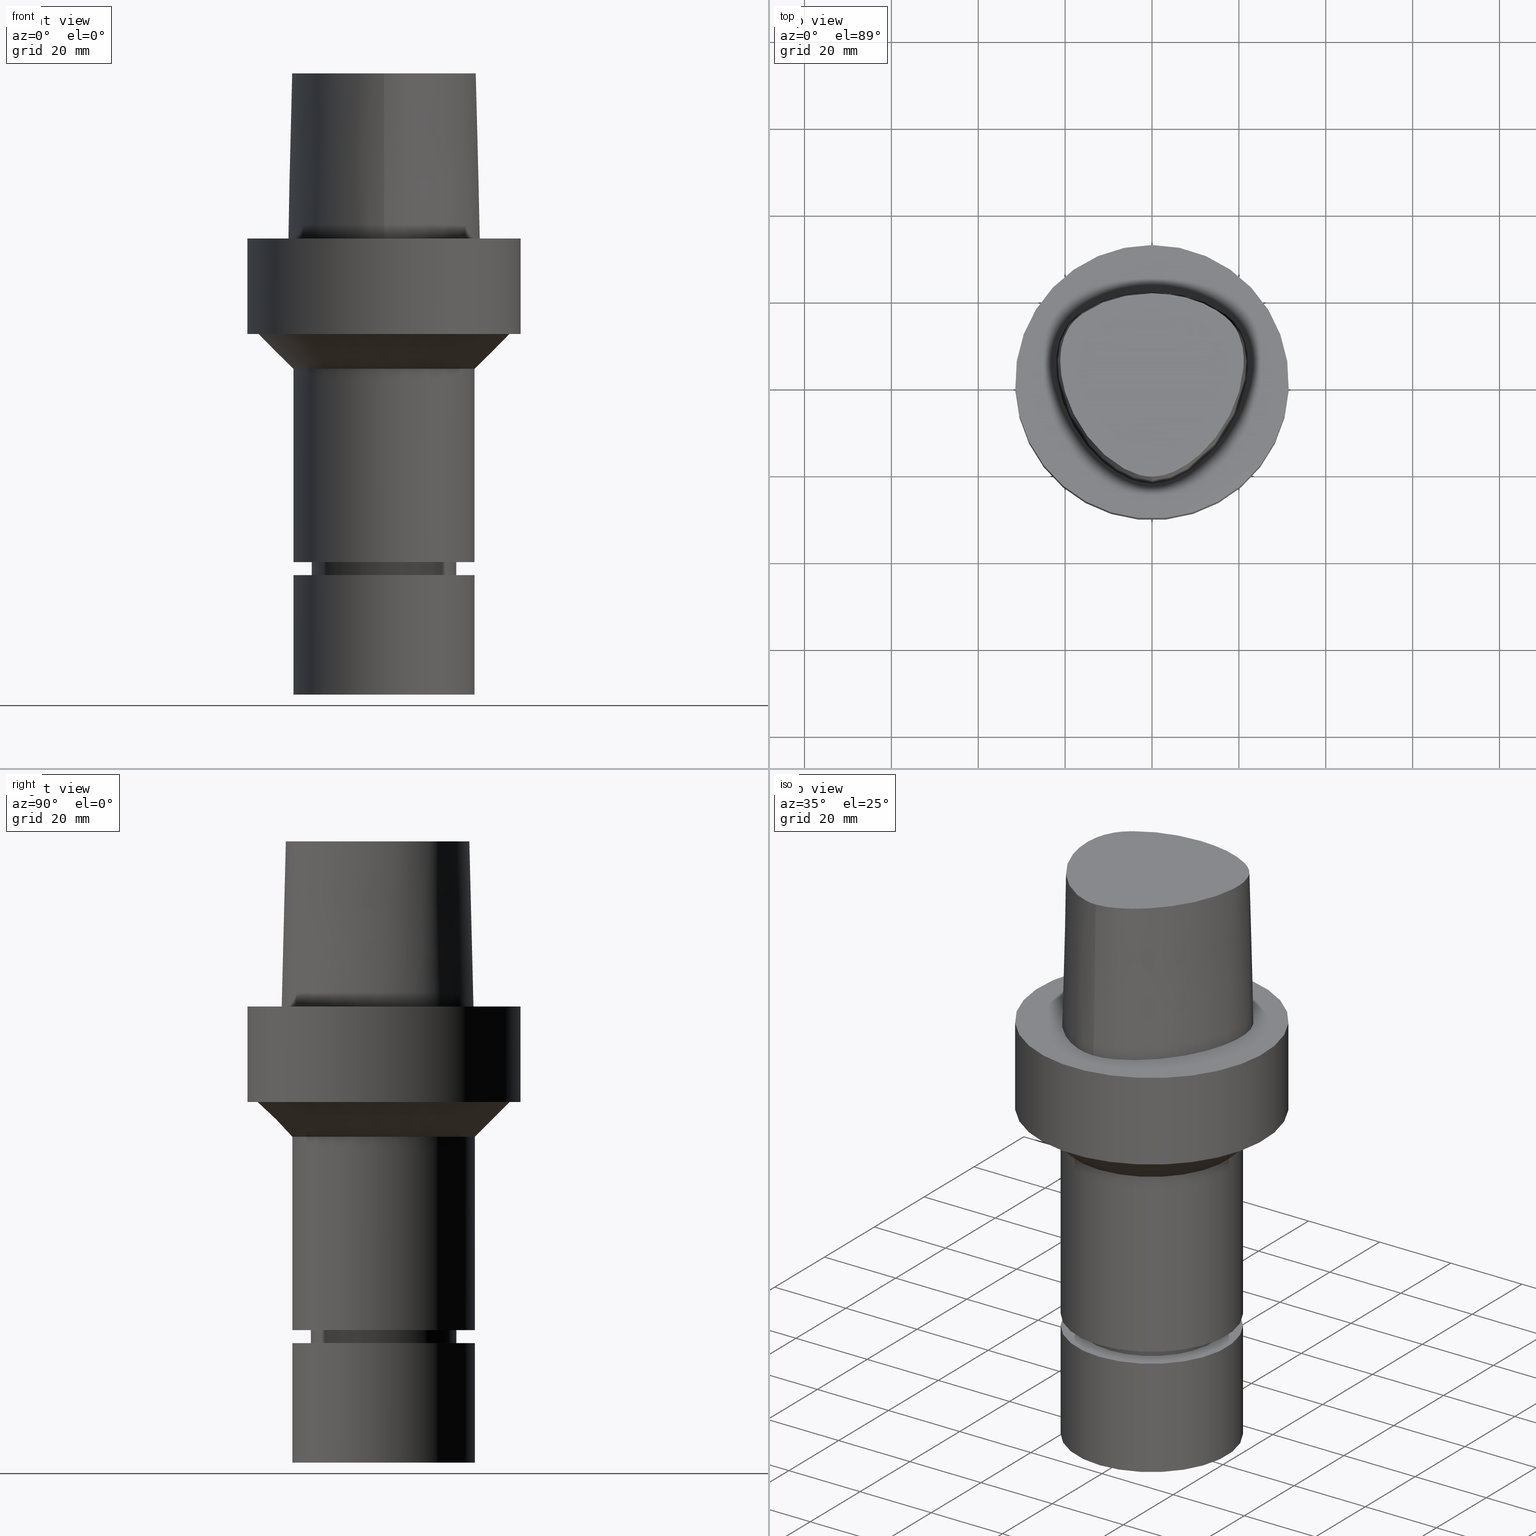
[diagram: canonical four-view strip — front | top / right | iso, engineering-drawing reading convention]
A machine part, canonical four-view strip (front | top / right | iso — engineering-drawing reading convention). The complete STEP part file that produces these views, byte-faithful:
ISO-10303-21;
HEADER;
FILE_DESCRIPTION((''),'1');
FILE_NAME('V:/90_\X2\53D65F9730C730FC30BF\X0\/00_\X2\6DE18DEF30C730FC30BF\X0\/ALL/CAPTO-BKUS\X2\52A05DE556F3\X0\_201801/C6-MEGAER/C6-MEGAER25-105NL.stp','2018-02-01T08:32:15',(''),(''),'Spatial Interop R21 SP3','Kubotek KeyCreator 2011 V10.0.2 (22737)',' ');
FILE_SCHEMA(('automotive_design'));
ENDSEC;
DATA;
#1=MECHANICAL_DESIGN_GEOMETRIC_PRESENTATION_REPRESENTATION(' ',(#14,#15,#16,#17,#18,#19,#20,#21,#22,#23,#24,#25,#26,#27,#28,#29,#30,#31,#32,#33,#34,#35,#36,#37,#38,#39,#40,#41,#42,#43,#44,#45,#46,#47,#48,#49,#50,#51,#52,#53),#10);
#2=PRODUCT_DEFINITION_CONTEXT('',#54,'design');
#3=APPLICATION_PROTOCOL_DEFINITION('INTERNATIONAL STANDARD','automotive_design',1994,#54);
#4=PRODUCT_CATEGORY_RELATIONSHIP('NONE','NONE',#55,#56);
#5=SHAPE_DEFINITION_REPRESENTATION(#57,#58);
#6=PRODUCT_DEFINITION_CONTEXT('',#59,'design');
#7=APPLICATION_PROTOCOL_DEFINITION('INTERNATIONAL STANDARD','automotive_design',1994,#59);
#8=PRODUCT_CATEGORY_RELATIONSHIP('NONE','NONE',#60,#61);
#9=SHAPE_DEFINITION_REPRESENTATION(#62,#63);
#10= (GEOMETRIC_REPRESENTATION_CONTEXT(3)GLOBAL_UNCERTAINTY_ASSIGNED_CONTEXT((#66))GLOBAL_UNIT_ASSIGNED_CONTEXT((#68,#69,#70))REPRESENTATION_CONTEXT('NONE','WORKSPACE'));
#14=STYLED_ITEM('',(#72),#73);
#15=STYLED_ITEM('',(#74),#75);
#16=STYLED_ITEM('',(#76,#77),#78);
#17=STYLED_ITEM('',(#79,#80),#81);
#18=STYLED_ITEM('',(#82),#83);
#19=STYLED_ITEM('',(#84,#85),#86);
#20=STYLED_ITEM('',(#87),#88);
#21=STYLED_ITEM('',(#89),#90);
#22=STYLED_ITEM('',(#91,#92),#93);
#23=STYLED_ITEM('',(#94),#95);
#24=STYLED_ITEM('',(#96,#97),#98);
#25=STYLED_ITEM('',(#99,#100),#101);
#26=STYLED_ITEM('',(#102),#103);
#27=STYLED_ITEM('',(#104,#105),#106);
#28=STYLED_ITEM('',(#107),#108);
#29=STYLED_ITEM('',(#109),#110);
#30=STYLED_ITEM('',(#111,#112),#113);
#31=STYLED_ITEM('',(#114),#115);
#32=STYLED_ITEM('',(#116,#117),#118);
#33=STYLED_ITEM('',(#119),#120);
#34=STYLED_ITEM('',(#121,#122),#123);
#35=STYLED_ITEM('',(#124,#125),#126);
#36=STYLED_ITEM('',(#127),#128);
#37=STYLED_ITEM('',(#129,#130),#131);
#38=STYLED_ITEM('',(#132,#133),#134);
#39=STYLED_ITEM('',(#135),#136);
#40=STYLED_ITEM('',(#137),#138);
#41=STYLED_ITEM('',(#139,#140),#141);
#42=STYLED_ITEM('',(#142,#143),#144);
#43=STYLED_ITEM('',(#145),#146);
#44=STYLED_ITEM('',(#147),#148);
#45=STYLED_ITEM('',(#149,#150),#151);
#46=STYLED_ITEM('',(#152),#153);
#47=STYLED_ITEM('',(#154),#155);
#48=STYLED_ITEM('',(#156,#157),#158);
#49=STYLED_ITEM('',(#159,#160),#161);
#50=STYLED_ITEM('',(#162),#163);
#51=STYLED_ITEM('',(#164,#165),#166);
#52=STYLED_ITEM('',(#167),#168);
#53=STYLED_ITEM('',(#169,#170),#171);
#54=APPLICATION_CONTEXT(' ');
#55=PRODUCT_CATEGORY('part','NONE');
#56=PRODUCT_RELATED_PRODUCT_CATEGORY('detail',' ',(#172));
#57=PRODUCT_DEFINITION_SHAPE('NONE','NONE',#173);
#58=ADVANCED_BREP_SHAPE_REPRESENTATION('Unnamed[1]',(#106,#174),#10);
#59=APPLICATION_CONTEXT(' ');
#60=PRODUCT_CATEGORY('part','NONE');
#61=PRODUCT_RELATED_PRODUCT_CATEGORY('detail',' ',(#175));
#62=PRODUCT_DEFINITION_SHAPE('NONE','NONE',#176);
#63=ADVANCED_BREP_SHAPE_REPRESENTATION('Unnamed[1]',(#141,#177),#10);
#66=UNCERTAINTY_MEASURE_WITH_UNIT(LENGTH_MEASURE(1.0E-006),#68,'','');
#68= (CONVERSION_BASED_UNIT('MILLIMETRE',#180)LENGTH_UNIT()NAMED_UNIT(#183));
#69= (NAMED_UNIT(#185)PLANE_ANGLE_UNIT()SI_UNIT($,.RADIAN.));
#70= (NAMED_UNIT(#185)SOLID_ANGLE_UNIT()SI_UNIT($,.STERADIAN.));
#72=PRESENTATION_STYLE_ASSIGNMENT((#191));
#73=EDGE_CURVE('Unnamed[1]',#192,#193,#194,.T.);
#74=PRESENTATION_STYLE_ASSIGNMENT((#195));
#75=EDGE_CURVE('Unnamed[1]',#196,#196,#197,.T.);
#76=PRESENTATION_STYLE_ASSIGNMENT((#198));
#77=PRESENTATION_STYLE_ASSIGNMENT((#199));
#78=ADVANCED_FACE('Unnamed[1]',(#200,#201),#202,.T.);
#79=PRESENTATION_STYLE_ASSIGNMENT((#203));
#80=PRESENTATION_STYLE_ASSIGNMENT((#204));
#81=ADVANCED_FACE('Unnamed[1]',(#205,#206),#207,.T.);
#82=PRESENTATION_STYLE_ASSIGNMENT((#208));
#83=EDGE_CURVE('Unnamed[1]',#209,#209,#210,.T.);
#84=PRESENTATION_STYLE_ASSIGNMENT((#211));
#85=PRESENTATION_STYLE_ASSIGNMENT((#212));
#86=ADVANCED_FACE('Unnamed[1]',(#213,#214),#215,.T.);
#87=PRESENTATION_STYLE_ASSIGNMENT((#216));
#88=EDGE_CURVE('Unnamed[1]',#217,#217,#218,.T.);
#89=PRESENTATION_STYLE_ASSIGNMENT((#219));
#90=EDGE_CURVE('Unnamed[1]',#220,#221,#222,.T.);
#91=PRESENTATION_STYLE_ASSIGNMENT((#223));
#92=PRESENTATION_STYLE_ASSIGNMENT((#224));
#93=ADVANCED_FACE('Unnamed[1]',(#225,#226),#227,.T.);
#94=PRESENTATION_STYLE_ASSIGNMENT((#228));
#95=EDGE_CURVE('Unnamed[1]',#221,#193,#229,.T.);
#96=PRESENTATION_STYLE_ASSIGNMENT((#230));
#97=PRESENTATION_STYLE_ASSIGNMENT((#231));
#98=ADVANCED_FACE('Unnamed[1]',(#232),#233,.T.);
#99=PRESENTATION_STYLE_ASSIGNMENT((#234));
#100=PRESENTATION_STYLE_ASSIGNMENT((#235));
#101=ADVANCED_FACE('Unnamed[1]',(#236),#237,.T.);
#102=PRESENTATION_STYLE_ASSIGNMENT((#238));
#103=EDGE_CURVE('Unnamed[1]',#239,#239,#240,.T.);
#104=PRESENTATION_STYLE_ASSIGNMENT((#241));
#105=PRESENTATION_STYLE_ASSIGNMENT((#242));
#106=MANIFOLD_SOLID_BREP('Unnamed[1]',#243);
#107=PRESENTATION_STYLE_ASSIGNMENT((#244));
#108=EDGE_CURVE('Unnamed[1]',#193,#245,#246,.T.);
#109=PRESENTATION_STYLE_ASSIGNMENT((#247));
#110=EDGE_CURVE('Unnamed[1]',#248,#248,#249,.T.);
#111=PRESENTATION_STYLE_ASSIGNMENT((#250));
#112=PRESENTATION_STYLE_ASSIGNMENT((#251));
#113=ADVANCED_FACE('Unnamed[1]',(#252,#253),#254,.T.);
#114=PRESENTATION_STYLE_ASSIGNMENT((#255));
#115=EDGE_CURVE('Unnamed[1]',#256,#256,#257,.T.);
#116=PRESENTATION_STYLE_ASSIGNMENT((#258));
#117=PRESENTATION_STYLE_ASSIGNMENT((#259));
#118=ADVANCED_FACE('Unnamed[1]',(#260,#261),#262,.T.);
#119=PRESENTATION_STYLE_ASSIGNMENT((#263));
#120=EDGE_CURVE('Unnamed[1]',#264,#264,#265,.T.);
#121=PRESENTATION_STYLE_ASSIGNMENT((#266));
#122=PRESENTATION_STYLE_ASSIGNMENT((#267));
#123=ADVANCED_FACE('Unnamed[1]',(#268),#269,.T.);
#124=PRESENTATION_STYLE_ASSIGNMENT((#270));
#125=PRESENTATION_STYLE_ASSIGNMENT((#271));
#126=ADVANCED_FACE('Unnamed[1]',(#272,#273),#274,.T.);
#127=PRESENTATION_STYLE_ASSIGNMENT((#275));
#128=EDGE_CURVE('Unnamed[1]',#276,#276,#277,.T.);
#129=PRESENTATION_STYLE_ASSIGNMENT((#278));
#130=PRESENTATION_STYLE_ASSIGNMENT((#279));
#131=ADVANCED_FACE('Unnamed[1]',(#280),#281,.T.);
#132=PRESENTATION_STYLE_ASSIGNMENT((#282));
#133=PRESENTATION_STYLE_ASSIGNMENT((#283));
#134=ADVANCED_FACE('Unnamed[1]',(#284,#285),#286,.T.);
#135=PRESENTATION_STYLE_ASSIGNMENT((#287));
#136=EDGE_CURVE('Unnamed[1]',#288,#288,#289,.T.);
#137=PRESENTATION_STYLE_ASSIGNMENT((#290));
#138=EDGE_CURVE('Unnamed[1]',#291,#291,#292,.T.);
#139=PRESENTATION_STYLE_ASSIGNMENT((#293));
#140=PRESENTATION_STYLE_ASSIGNMENT((#294));
#141=MANIFOLD_SOLID_BREP('Unnamed[1]',#295);
#142=PRESENTATION_STYLE_ASSIGNMENT((#296));
#143=PRESENTATION_STYLE_ASSIGNMENT((#297));
#144=ADVANCED_FACE('Unnamed[1]',(#298),#299,.T.);
#145=PRESENTATION_STYLE_ASSIGNMENT((#300));
#146=EDGE_CURVE('Unnamed[1]',#220,#245,#301,.T.);
#147=PRESENTATION_STYLE_ASSIGNMENT((#302));
#148=EDGE_CURVE('Unnamed[1]',#303,#303,#304,.T.);
#149=PRESENTATION_STYLE_ASSIGNMENT((#305));
#150=PRESENTATION_STYLE_ASSIGNMENT((#306));
#151=ADVANCED_FACE('Unnamed[1]',(#307,#308),#309,.T.);
#152=PRESENTATION_STYLE_ASSIGNMENT((#310));
#153=EDGE_CURVE('Unnamed[1]',#220,#192,#311,.T.);
#154=PRESENTATION_STYLE_ASSIGNMENT((#312));
#155=EDGE_CURVE('Unnamed[1]',#313,#313,#314,.T.);
#156=PRESENTATION_STYLE_ASSIGNMENT((#315));
#157=PRESENTATION_STYLE_ASSIGNMENT((#316));
#158=ADVANCED_FACE('Unnamed[1]',(#317,#318),#319,.T.);
#159=PRESENTATION_STYLE_ASSIGNMENT((#320));
#160=PRESENTATION_STYLE_ASSIGNMENT((#321));
#161=ADVANCED_FACE('Unnamed[1]',(#322),#323,.T.);
#162=PRESENTATION_STYLE_ASSIGNMENT((#324));
#163=EDGE_CURVE('Unnamed[1]',#192,#220,#325,.T.);
#164=PRESENTATION_STYLE_ASSIGNMENT((#326));
#165=PRESENTATION_STYLE_ASSIGNMENT((#327));
#166=ADVANCED_FACE('Unnamed[1]',(#328),#329,.T.);
#167=PRESENTATION_STYLE_ASSIGNMENT((#330));
#168=EDGE_CURVE('Unnamed[1]',#245,#221,#331,.T.);
#169=PRESENTATION_STYLE_ASSIGNMENT((#332));
#170=PRESENTATION_STYLE_ASSIGNMENT((#333));
#171=ADVANCED_FACE('Unnamed[1]',(#334,#335),#336,.T.);
#172=PRODUCT('Unnamed[1]','Unnamed[1]','PART-Unnamed[1]-DESC',(#337));
#173=PRODUCT_DEFINITION('NONE','NONE',#338,#2);
#174=AXIS2_PLACEMENT_3D('',#339,#340,#341);
#175=PRODUCT('Unnamed[1]','Unnamed[1]','PART-Unnamed[1]-DESC',(#342));
#176=PRODUCT_DEFINITION('NONE','NONE',#343,#6);
#177=AXIS2_PLACEMENT_3D('',#344,#345,#346);
#180=LENGTH_MEASURE_WITH_UNIT(LENGTH_MEASURE(1.0),#347);
#183=DIMENSIONAL_EXPONENTS(1.0,0.0,0.0,0.0,0.0,0.0,0.0);
#185=DIMENSIONAL_EXPONENTS(0.0,0.0,0.0,0.0,0.0,0.0,0.0);
#191=CURVE_STYLE('',#348,POSITIVE_LENGTH_MEASURE(1000.0),#349);
#192=VERTEX_POINT('',#350);
#193=VERTEX_POINT('',#351);
#194=LINE('',#352,#353);
#195=CURVE_STYLE('',#354,POSITIVE_LENGTH_MEASURE(1000.0),#355);
#196=VERTEX_POINT('',#356);
#197=CIRCLE('',#357,21.0);
#198=SURFACE_STYLE_USAGE(.BOTH.,#358);
#199=CURVE_STYLE('',#359,POSITIVE_LENGTH_MEASURE(1000.0),#360);
#200=FACE_BOUND('',#361,.T.);
#201=FACE_OUTER_BOUND('',#362,.T.);
#202=PLANE('',#363);
#203=SURFACE_STYLE_USAGE(.BOTH.,#364);
#204=CURVE_STYLE('',#365,POSITIVE_LENGTH_MEASURE(1000.0),#366);
#205=FACE_BOUND('',#367,.T.);
#206=FACE_BOUND('',#368,.T.);
#207=CONICAL_SURFACE('',#369,15.4500000000003,0.523598775598044);
#208=CURVE_STYLE('',#370,POSITIVE_LENGTH_MEASURE(1000.0),#371);
#209=VERTEX_POINT('',#372);
#210=CIRCLE('',#373,31.5);
#211=SURFACE_STYLE_USAGE(.BOTH.,#374);
#212=CURVE_STYLE('',#375,POSITIVE_LENGTH_MEASURE(1000.0),#376);
#213=FACE_BOUND('',#377,.T.);
#214=FACE_BOUND('',#378,.T.);
#215=CYLINDRICAL_SURFACE('',#379,21.0);
#216=CURVE_STYLE('',#380,POSITIVE_LENGTH_MEASURE(1000.0),#381);
#217=VERTEX_POINT('',#382);
#218=CIRCLE('',#383,16.0);
#219=CURVE_STYLE('',#384,POSITIVE_LENGTH_MEASURE(1000.0),#385);
#220=VERTEX_POINT('',#386);
#221=VERTEX_POINT('',#387);
#222=LINE('',#388,#389);
#223=SURFACE_STYLE_USAGE(.BOTH.,#390);
#224=CURVE_STYLE('',#391,POSITIVE_LENGTH_MEASURE(1000.0),#392);
#225=FACE_BOUND('',#393,.T.);
#226=FACE_BOUND('',#394,.T.);
#227=CYLINDRICAL_SURFACE('',#395,16.7499999999962);
#228=CURVE_STYLE('',#396,POSITIVE_LENGTH_MEASURE(1000.0),#397);
#229=B_SPLINE_CURVE_WITH_KNOTS('',3,(#398,#399,#400,#401,#402,#403,#404,#405,#406,#407,#408,#409,#410,#411,#412,#413,#414),.UNSPECIFIED.,.F.,.F.,(4,1,1,1,1,1,1,1,1,1,1,1,1,1,4),(-13.2302678617486,-12.816821991069,-12.4033761203893,-11.9899302497097,-11.57648437903,-11.1630385083504,-10.9563155730106,-10.7495926376707,-10.3361467669911,-9.92270089631145,-9.09580915495216,-8.26891741359287,-7.44202567223358,-7.02857980155394,-6.6151339308743),.UNSPECIFIED.);
#230=SURFACE_STYLE_USAGE(.BOTH.,#415);
#231=CURVE_STYLE('',#416,POSITIVE_LENGTH_MEASURE(1000.0),#417);
#232=FACE_OUTER_BOUND('',#418,.T.);
#233=CONICAL_SURFACE('',#419,1.0,0.0249931148600041);
#234=SURFACE_STYLE_USAGE(.BOTH.,#420);
#235=CURVE_STYLE('',#421,POSITIVE_LENGTH_MEASURE(1000.0),#422);
#236=FACE_OUTER_BOUND('',#423,.T.);
#237=B_SPLINE_SURFACE_WITH_KNOTS('',3,3,((#424,#425,#426,#427),(#428,#429,#430,#431),(#432,#433,#434,#435),(#436,#437,#438,#439),(#440,#441,#442,#443),(#444,#445,#446,#447),(#448,#449,#450,#451),(#452,#453,#454,#455),(#456,#457,#458,#459),(#460,#461,#462,#463),(#464,#465,#466,#467),(#468,#469,#470,#471),(#472,#473,#474,#475),(#476,#477,#478,#479),(#480,#481,#482,#483),(#484,#485,#486,#487),(#488,#489,#490,#491)),.UNSPECIFIED.,.F.,.F.,.F.,(4,1,1,1,1,1,1,1,1,1,1,1,1,1,4),(4,4),(-13.2302678617486,-12.816821991069,-12.4033761203893,-11.9899302497097,-11.57648437903,-11.1630385083504,-10.9563155730106,-10.7495926376707,-10.3361467669911,-9.92270089631145,-9.09580915495216,-8.26891741359287,-7.44202567223358,-7.02857980155394,-6.6151339308743),(-3.8,0.0),.UNSPECIFIED.);
#238=CURVE_STYLE('',#492,POSITIVE_LENGTH_MEASURE(1000.0),#493);
#239=VERTEX_POINT('',#494);
#240=CIRCLE('',#495,14.9000000000006);
#241=SURFACE_STYLE_USAGE(.BOTH.,#496);
#242=CURVE_STYLE('',#497,POSITIVE_LENGTH_MEASURE(1000.0),#498);
#243=CLOSED_SHELL('',(#101,#131,#98,#166,#78,#126,#134,#151,#113,#171,#93,#158,#118,#81,#144));
#244=CURVE_STYLE('',#499,POSITIVE_LENGTH_MEASURE(1000.0),#500);
#245=VERTEX_POINT('',#501);
#246=B_SPLINE_CURVE_WITH_KNOTS('',3,(#502,#503,#504,#505,#506,#507,#508,#509,#510,#511,#512,#513,#514,#515,#516,#517,#518,#519),.UNSPECIFIED.,.F.,.F.,(4,1,1,1,1,1,1,1,1,2,1,1,1,1,4),(-6.6151339308743,-6.20168806019465,-5.78824218951501,-5.37479631883537,-4.96135044815572,-4.13445870679644,-3.30756696543715,-2.89412109475751,-2.48067522407786,-2.06722935339822,-1.65378348271857,-1.24033761203893,-0.826891741359287,-0.413445870679644,0.0),.UNSPECIFIED.);
#247=CURVE_STYLE('',#520,POSITIVE_LENGTH_MEASURE(1000.0),#521);
#248=VERTEX_POINT('',#522);
#249=CIRCLE('',#523,21.0000000000001);
#250=SURFACE_STYLE_USAGE(.BOTH.,#524);
#251=CURVE_STYLE('',#525,POSITIVE_LENGTH_MEASURE(1000.0),#526);
#252=FACE_BOUND('',#527,.T.);
#253=FACE_BOUND('',#528,.T.);
#254=CYLINDRICAL_SURFACE('',#529,21.0000000000002);
#255=CURVE_STYLE('',#530,POSITIVE_LENGTH_MEASURE(1000.0),#531);
#256=VERTEX_POINT('',#532);
#257=CIRCLE('',#533,31.5);
#258=SURFACE_STYLE_USAGE(.BOTH.,#534);
#259=CURVE_STYLE('',#535,POSITIVE_LENGTH_MEASURE(1000.0),#536);
#260=FACE_BOUND('',#537,.T.);
#261=FACE_BOUND('',#538,.T.);
#262=CYLINDRICAL_SURFACE('',#539,16.0);
#263=CURVE_STYLE('',#540,POSITIVE_LENGTH_MEASURE(1000.0),#541);
#264=VERTEX_POINT('',#542);
#265=CIRCLE('',#543,16.0);
#266=SURFACE_STYLE_USAGE(.BOTH.,#544);
#267=CURVE_STYLE('',#545,POSITIVE_LENGTH_MEASURE(1000.0),#546);
#268=FACE_OUTER_BOUND('',#547,.T.);
#269=PLANE('',#548);
#270=SURFACE_STYLE_USAGE(.BOTH.,#549);
#271=CURVE_STYLE('',#550,POSITIVE_LENGTH_MEASURE(1000.0),#551);
#272=FACE_BOUND('',#552,.T.);
#273=FACE_BOUND('',#553,.T.);
#274=CYLINDRICAL_SURFACE('',#554,31.5);
#275=CURVE_STYLE('',#555,POSITIVE_LENGTH_MEASURE(1000.0),#556);
#276=VERTEX_POINT('',#557);
#277=CIRCLE('',#558,16.7499999999907);
#278=SURFACE_STYLE_USAGE(.BOTH.,#559);
#279=CURVE_STYLE('',#560,POSITIVE_LENGTH_MEASURE(1000.0),#561);
#280=FACE_OUTER_BOUND('',#562,.T.);
#281=B_SPLINE_SURFACE_WITH_KNOTS('',3,3,((#563,#564,#565,#566),(#567,#568,#569,#570),(#571,#572,#573,#574),(#575,#576,#577,#578),(#579,#580,#581,#582),(#583,#584,#585,#586),(#587,#588,#589,#590),(#591,#592,#593,#594),(#595,#596,#597,#598),(#599,#600,#601,#602),(#603,#604,#605,#606),(#607,#608,#609,#610),(#611,#612,#613,#614),(#615,#616,#617,#618),(#619,#620,#621,#622),(#623,#624,#625,#626),(#627,#628,#629,#630),(#631,#632,#633,#634)),.UNSPECIFIED.,.F.,.F.,.F.,(4,1,1,1,1,1,1,1,1,2,1,1,1,1,4),(4,4),(-6.6151339308743,-6.20168806019465,-5.78824218951501,-5.37479631883537,-4.96135044815572,-4.13445870679644,-3.30756696543715,-2.89412109475751,-2.48067522407786,-2.06722935339822,-1.65378348271857,-1.24033761203893,-0.826891741359287,-0.413445870679644,0.0),(-3.8,0.0),.UNSPECIFIED.);
#282=SURFACE_STYLE_USAGE(.BOTH.,#635);
#283=CURVE_STYLE('',#636,POSITIVE_LENGTH_MEASURE(1000.0),#637);
#284=FACE_BOUND('',#638,.T.);
#285=FACE_OUTER_BOUND('',#639,.T.);
#286=PLANE('',#640);
#287=CURVE_STYLE('',#641,POSITIVE_LENGTH_MEASURE(1000.0),#642);
#288=VERTEX_POINT('',#643);
#289=CIRCLE('',#644,21.0000000000002);
#290=CURVE_STYLE('',#645,POSITIVE_LENGTH_MEASURE(1000.0),#646);
#291=VERTEX_POINT('',#647);
#292=CIRCLE('',#648,21.0);
#293=SURFACE_STYLE_USAGE(.BOTH.,#649);
#294=CURVE_STYLE('',#650,POSITIVE_LENGTH_MEASURE(1000.0),#651);
#295=CLOSED_SHELL('',(#123,#161,#86));
#296=SURFACE_STYLE_USAGE(.BOTH.,#652);
#297=CURVE_STYLE('',#653,POSITIVE_LENGTH_MEASURE(1000.0),#654);
#298=FACE_OUTER_BOUND('',#655,.T.);
#299=PLANE('',#656);
#300=CURVE_STYLE('',#657,POSITIVE_LENGTH_MEASURE(1000.0),#658);
#301=LINE('',#659,#660);
#302=CURVE_STYLE('',#661,POSITIVE_LENGTH_MEASURE(1000.0),#662);
#303=VERTEX_POINT('',#663);
#304=CIRCLE('',#664,28.9999999999996);
#305=SURFACE_STYLE_USAGE(.BOTH.,#665);
#306=CURVE_STYLE('',#666,POSITIVE_LENGTH_MEASURE(1000.0),#667);
#307=FACE_BOUND('',#668,.T.);
#308=FACE_BOUND('',#669,.T.);
#309=CONICAL_SURFACE('',#670,24.9999999999999,0.785398163397414);
#310=CURVE_STYLE('',#671,POSITIVE_LENGTH_MEASURE(1000.0),#672);
#311=B_SPLINE_CURVE_WITH_KNOTS('',3,(#673,#674,#675,#676,#677,#678,#679,#680,#681,#682,#683,#684,#685,#686,#687,#688),.UNSPECIFIED.,.F.,.F.,(4,1,1,1,1,1,1,1,1,1,1,1,1,4),(0.0,0.447924670568964,0.9388024242536,1.50591409090711,2.07314340012323,2.72424957442464,3.2253501842849,3.80982102049476,4.34867996267067,4.85900173381144,5.37972031856977,6.03459825488646,6.61113557741484,6.61513393087395),.UNSPECIFIED.);
#312=CURVE_STYLE('',#689,POSITIVE_LENGTH_MEASURE(1000.0),#690);
#313=VERTEX_POINT('',#691);
#314=CIRCLE('',#692,16.7500000000017);
#315=SURFACE_STYLE_USAGE(.BOTH.,#693);
#316=CURVE_STYLE('',#694,POSITIVE_LENGTH_MEASURE(1000.0),#695);
#317=FACE_BOUND('',#696,.T.);
#318=FACE_BOUND('',#697,.T.);
#319=CONICAL_SURFACE('',#698,16.3750000000008,1.04719755120063);
#320=SURFACE_STYLE_USAGE(.BOTH.,#699);
#321=CURVE_STYLE('',#700,POSITIVE_LENGTH_MEASURE(1000.0),#701);
#322=FACE_OUTER_BOUND('',#702,.T.);
#323=PLANE('',#703);
#324=CURVE_STYLE('',#704,POSITIVE_LENGTH_MEASURE(1000.0),#705);
#325=B_SPLINE_CURVE_WITH_KNOTS('',3,(#706,#707,#708,#709,#710,#711,#712,#713,#714,#715,#716,#717,#718,#719,#720,#721),.UNSPECIFIED.,.F.,.F.,(4,1,1,1,1,1,1,1,1,1,1,1,1,4),(6.61513393087476,6.99917207152274,7.48193246986995,7.96289324787093,8.45540287038584,9.10291653679981,9.67129810936083,10.1618749681153,10.6358867802489,11.1080734988593,11.6043706019633,12.09451993853,12.6985979284494,13.2302678617486),.UNSPECIFIED.);
#326=SURFACE_STYLE_USAGE(.BOTH.,#722);
#327=CURVE_STYLE('',#723,POSITIVE_LENGTH_MEASURE(1000.0),#724);
#328=FACE_OUTER_BOUND('',#725,.T.);
#329=PLANE('',#726);
#330=CURVE_STYLE('',#727,POSITIVE_LENGTH_MEASURE(1000.0),#728);
#331=CIRCLE('',#729,0.949936168436318);
#332=SURFACE_STYLE_USAGE(.BOTH.,#730);
#333=CURVE_STYLE('',#731,POSITIVE_LENGTH_MEASURE(1000.0),#732);
#334=FACE_BOUND('',#733,.T.);
#335=FACE_OUTER_BOUND('',#734,.T.);
#336=PLANE('',#735);
#337=PRODUCT_CONTEXT('',#54,'mechanical');
#338=PRODUCT_DEFINITION_FORMATION_WITH_SPECIFIED_SOURCE(' ','NONE',#172,.NOT_KNOWN.);
#339=CARTESIAN_POINT('',(0.0,0.0,0.0));
#340=DIRECTION('',(0.0,0.0,1.0));
#341=DIRECTION('',(1.0,0.0,0.0));
#342=PRODUCT_CONTEXT('',#59,'mechanical');
#343=PRODUCT_DEFINITION_FORMATION_WITH_SPECIFIED_SOURCE(' ','NONE',#175,.NOT_KNOWN.);
#344=CARTESIAN_POINT('',(0.0,0.0,0.0));
#345=DIRECTION('',(0.0,0.0,1.0));
#346=DIRECTION('',(1.0,0.0,0.0));
#347= (NAMED_UNIT(#183)LENGTH_UNIT()SI_UNIT(.MILLI.,.METRE.));
#348=DRAUGHTING_PRE_DEFINED_CURVE_FONT('continuous');
#349=COLOUR_RGB('',0.0,1.0,0.0);
#350=CARTESIAN_POINT('',(0.038736923393866,-22.5191997536361,38.0));
#351=CARTESIAN_POINT('',(0.04359356758149,-23.4691235068931,7.78075697532443E-032));
#352=CARTESIAN_POINT('',(0.038736923393866,-22.5191997536361,38.0));
#353=VECTOR('',#737,38.0118715498723);
#354=DRAUGHTING_PRE_DEFINED_CURVE_FONT('continuous');
#355=COLOUR_RGB('',0.0,1.0,0.0);
#356=CARTESIAN_POINT('',(4.74550634669599E-015,21.0,-77.5));
#357=AXIS2_PLACEMENT_3D('',#738,#739,#740);
#358=SURFACE_SIDE_STYLE('',(#741));
#359=DRAUGHTING_PRE_DEFINED_CURVE_FONT('continuous');
#360=COLOUR_RGB('',0.0,1.0,0.0);
#361=EDGE_LOOP('',(#742,#743,#744));
#362=EDGE_LOOP('',(#745));
#363=AXIS2_PLACEMENT_3D('',#746,#747,#748);
#364=SURFACE_SIDE_STYLE('',(#749));
#365=DRAUGHTING_PRE_DEFINED_CURVE_FONT('continuous');
#366=COLOUR_RGB('',0.0,1.0,0.0);
#367=EDGE_LOOP('',(#750));
#368=EDGE_LOOP('',(#751));
#369=AXIS2_PLACEMENT_3D('',#752,#753,#754);
#370=DRAUGHTING_PRE_DEFINED_CURVE_FONT('continuous');
#371=COLOUR_RGB('',0.0,1.0,0.0);
#372=CARTESIAN_POINT('',(-3.88267476788467E-031,31.5,3.85763741731416E-015));
#373=AXIS2_PLACEMENT_3D('',#755,#756,#757);
#374=SURFACE_SIDE_STYLE('',(#758));
#375=DRAUGHTING_PRE_DEFINED_CURVE_FONT('continuous');
#376=COLOUR_RGB('',0.0,1.0,0.0);
#377=EDGE_LOOP('',(#759));
#378=EDGE_LOOP('',(#760));
#379=AXIS2_PLACEMENT_3D('',#761,#762,#763);
#380=DRAUGHTING_PRE_DEFINED_CURVE_FONT('continuous');
#381=COLOUR_RGB('',0.0,1.0,0.0);
#382=CARTESIAN_POINT('',(4.95371697258611E-015,16.0,-80.9003375672901));
#383=AXIS2_PLACEMENT_3D('',#764,#765,#766);
#384=DRAUGHTING_PRE_DEFINED_CURVE_FONT('continuous');
#385=COLOUR_RGB('',0.0,1.0,0.0);
#386=CARTESIAN_POINT('',(-0.001218547003662,19.7276821925089,38.0));
#387=CARTESIAN_POINT('',(0.044682985379347,20.6765087343109,1.61778115328528E-031));
#388=CARTESIAN_POINT('',(-0.001218547003662,19.7276821925089,38.0));
#389=VECTOR('',#767,38.0118715503078);
#390=SURFACE_SIDE_STYLE('',(#768));
#391=DRAUGHTING_PRE_DEFINED_CURVE_FONT('continuous');
#392=COLOUR_RGB('',0.0,1.0,0.0);
#393=EDGE_LOOP('',(#769));
#394=EDGE_LOOP('',(#770));
#395=AXIS2_PLACEMENT_3D('',#771,#772,#773);
#396=DRAUGHTING_PRE_DEFINED_CURVE_FONT('continuous');
#397=COLOUR_RGB('',0.0,1.0,0.0);
#398=CARTESIAN_POINT('',(0.044682985379347,20.6765087343109,1.61778115328528E-031));
#399=CARTESIAN_POINT('',(1.42379272427753,20.6097915814392,8.62816615085482E-032));
#400=CARTESIAN_POINT('',(4.2230955003445,20.4837538303966,1.4791141972894E-031));
#401=CARTESIAN_POINT('',(8.47220762821777,19.6890432607088,9.86076131526265E-032));
#402=CARTESIAN_POINT('',(12.5141247708253,18.2434968480404,0.0));
#403=CARTESIAN_POINT('',(16.3038624872874,16.1734192182143,1.97215226305253E-031));
#404=CARTESIAN_POINT('',(19.1446913988473,13.7036723639434,-1.97215226305253E-031));
#405=CARTESIAN_POINT('',(20.7319894342149,11.1014620996188,0.0));
#406=CARTESIAN_POINT('',(21.7831756505763,8.28099229708081,-1.97215226305253E-031));
#407=CARTESIAN_POINT('',(22.2258240701438,4.60865440596506,0.0));
#408=CARTESIAN_POINT('',(21.7436130080666,-1.11326526354485,0.0));
#409=CARTESIAN_POINT('',(19.5519487660502,-7.95432366164584,0.0));
#410=CARTESIAN_POINT('',(14.9574167123838,-15.2089785567293,0.0));
#411=CARTESIAN_POINT('',(9.66840283021945,-20.0827414369705,-9.86076131526265E-032));
#412=CARTESIAN_POINT('',(4.51628650521788,-22.7946374572188,-9.86076131526265E-032));
#413=CARTESIAN_POINT('',(1.55867251738073,-23.4612972770043,-1.23259516440783E-032));
#414=CARTESIAN_POINT('',(0.04359356758149,-23.4691235068931,7.78075697532443E-032));
#415=SURFACE_SIDE_STYLE('',(#774));
#416=DRAUGHTING_PRE_DEFINED_CURVE_FONT('continuous');
#417=COLOUR_RGB('',0.0,1.0,0.0);
#418=EDGE_LOOP('',(#775,#776,#777));
#419=AXIS2_PLACEMENT_3D('',#778,#779,#780);
#420=SURFACE_SIDE_STYLE('',(#781));
#421=DRAUGHTING_PRE_DEFINED_CURVE_FONT('continuous');
#422=COLOUR_RGB('',0.0,1.0,0.0);
#423=EDGE_LOOP('',(#782,#783,#784,#785));
#424=CARTESIAN_POINT('',(-0.001218367817519,19.7276822012873,38.0));
#425=CARTESIAN_POINT('',(0.014082083248157,20.0439577123075,25.3333333333066));
#426=CARTESIAN_POINT('',(0.029382534313671,20.3602332232908,12.6666666666934));
#427=CARTESIAN_POINT('',(0.044682985379347,20.6765087343109,1.61778115328528E-031));
#428=CARTESIAN_POINT('',(1.37788651195108,19.6609652834875,38.0));
#429=CARTESIAN_POINT('',(1.3931885827258,19.9772407169847,25.3333333333066));
#430=CARTESIAN_POINT('',(1.40849065356095,20.2935162254648,12.6666666666934));
#431=CARTESIAN_POINT('',(1.42379272427753,20.6097915814392,8.62816615085482E-032));
#432=CARTESIAN_POINT('',(4.135446440878,19.5347778787784,38.0));
#433=CARTESIAN_POINT('',(4.16466278851883,19.8511031866125,25.3333333333066));
#434=CARTESIAN_POINT('',(4.1938791526746,20.1674284644204,12.6666666666934));
#435=CARTESIAN_POINT('',(4.2230955003445,20.4837538303966,1.4791141972894E-031));
#436=CARTESIAN_POINT('',(8.213607363795,18.7706026638736,38.0));
#437=CARTESIAN_POINT('',(8.29980745008421,19.0767495109635,25.3333333333066));
#438=CARTESIAN_POINT('',(8.38600751285747,19.3828964329996,12.6666666666934));
#439=CARTESIAN_POINT('',(8.47220762821777,19.6890432607088,9.86076131526265E-032));
#440=CARTESIAN_POINT('',(12.1316338645671,17.3698624840857,38.0));
#441=CARTESIAN_POINT('',(12.2591308270381,17.6610739397708,25.3333333333066));
#442=CARTESIAN_POINT('',(12.3866278083543,17.9522853923553,12.6666666666934));
#443=CARTESIAN_POINT('',(12.5141247708253,18.2434968480404,0.0));
#444=CARTESIAN_POINT('',(15.7706546153679,15.3789501349612,38.0));
#445=CARTESIAN_POINT('',(15.9483905900895,15.6437731794811,25.3333333333066));
#446=CARTESIAN_POINT('',(16.1261265513272,15.9085961736944,12.6666666666934));
#447=CARTESIAN_POINT('',(16.3038624872874,16.1734192182143,1.97215226305253E-031));
#448=CARTESIAN_POINT('',(18.4265894256284,13.0570022172893,38.0));
#449=CARTESIAN_POINT('',(18.6659567517146,13.2725589420689,25.3333333333066));
#450=CARTESIAN_POINT('',(18.9053240921419,13.4881156488541,12.6666666666934));
#451=CARTESIAN_POINT('',(19.1446913988473,13.7036723639434,-1.97215226305253E-031));
#452=CARTESIAN_POINT('',(19.8679958653038,10.6923771981998,38.0));
#453=CARTESIAN_POINT('',(20.1559937048299,10.8287388264873,25.3333333333066));
#454=CARTESIAN_POINT('',(20.4439915656177,10.965100461641,12.6666666666934));
#455=CARTESIAN_POINT('',(20.7319894342149,11.1014620996188,0.0));
#456=CARTESIAN_POINT('',(20.8470867582337,8.07149548576131,38.0));
#457=CARTESIAN_POINT('',(21.1591164072431,8.14132775555392,25.3333333333066));
#458=CARTESIAN_POINT('',(21.4711459821861,8.21116003697855,12.6666666666934));
#459=CARTESIAN_POINT('',(21.7831756505763,8.28099229708081,-1.97215226305253E-031));
#460=CARTESIAN_POINT('',(21.2693244256982,4.61157245650171,38.0));
#461=CARTESIAN_POINT('',(21.5881576801997,4.6105997689982,25.3333333333066));
#462=CARTESIAN_POINT('',(21.9069908544037,4.60962709346857,12.6666666666934));
#463=CARTESIAN_POINT('',(22.2258240701438,4.60865440596506,0.0));
#464=CARTESIAN_POINT('',(20.8071610855575,-0.912828649855193,38.0));
#465=CARTESIAN_POINT('',(21.119311671178,-0.979640884839481,25.3333333333066));
#466=CARTESIAN_POINT('',(21.4314624224461,-1.04645306732201,12.6666666666934));
#467=CARTESIAN_POINT('',(21.7436130080666,-1.11326526354485,0.0));
#468=CARTESIAN_POINT('',(18.6841935581315,-7.54428794252837,38.0));
#469=CARTESIAN_POINT('',(18.9734452551861,-7.6809665891091,25.3333333333066));
#470=CARTESIAN_POINT('',(19.2626970689956,-7.81764505382656,12.6666666666934));
#471=CARTESIAN_POINT('',(19.5519487660502,-7.95432366164584,0.0));
#472=CARTESIAN_POINT('',(14.2175552814,-14.5971504342323,38.0));
#473=CARTESIAN_POINT('',(14.4641757465198,-14.8010930946929,25.3333333333066));
#474=CARTESIAN_POINT('',(14.710796247264,-15.0050359737917,12.6666666666934));
#475=CARTESIAN_POINT('',(14.9574167123838,-15.2089785567293,0.0));
#476=CARTESIAN_POINT('',(9.0844808732933,-19.3179298129689,38.0));
#477=CARTESIAN_POINT('',(9.27912152349017,-19.572866915557,25.3333333333066));
#478=CARTESIAN_POINT('',(9.47376218971294,-19.827804295621,12.6666666666934));
#479=CARTESIAN_POINT('',(9.66840283021945,-20.0827414369705,-9.86076131526265E-032));
#480=CARTESIAN_POINT('',(4.17112919194182,-21.8987568152736,38.0));
#481=CARTESIAN_POINT('',(4.28618163483998,-22.1973837173649,25.3333333333066));
#482=CARTESIAN_POINT('',(4.40123406239433,-22.4960105163661,12.6666666666934));
#483=CARTESIAN_POINT('',(4.51628650521788,-22.7946374572188,-9.86076131526265E-032));
#484=CARTESIAN_POINT('',(1.41533654381097,-22.5120888467812,38.0));
#485=CARTESIAN_POINT('',(1.46311520162011,-22.8284916374445,25.3333333333066));
#486=CARTESIAN_POINT('',(1.51089385942236,-23.144894486341,12.6666666666934));
#487=CARTESIAN_POINT('',(1.55867251738073,-23.4612972770043,-1.23259516440783E-032));
#488=CARTESIAN_POINT('',(0.038736923393866,-22.5191997536361,38.0));
#489=CARTESIAN_POINT('',(0.04035580478973,-22.8358410047159,25.3333333333066));
#490=CARTESIAN_POINT('',(0.041974686185626,-23.1524822558133,12.6666666666934));
#491=CARTESIAN_POINT('',(0.04359356758149,-23.4691235068931,7.78075697532443E-032));
#492=DRAUGHTING_PRE_DEFINED_CURVE_FONT('continuous');
#493=COLOUR_RGB('',0.0,1.0,0.0);
#494=CARTESIAN_POINT('',(5.80482582795847E-015,14.9000000000007,-94.8000000000002));
#495=AXIS2_PLACEMENT_3D('',#786,#787,#788);
#496=SURFACE_SIDE_STYLE('',(#789));
#497=DRAUGHTING_PRE_DEFINED_CURVE_FONT('continuous');
#498=COLOUR_RGB('',0.0,1.0,0.0);
#499=DRAUGHTING_PRE_DEFINED_CURVE_FONT('continuous');
#500=COLOUR_RGB('',0.0,1.0,0.0);
#501=CARTESIAN_POINT('',(-0.045171994691285,20.6766009553285,1.6755590516169E-031));
#502=CARTESIAN_POINT('',(0.04359356758149,-23.4691235068931,7.78075697532443E-032));
#503=CARTESIAN_POINT('',(-1.4714994713963,-23.4767895315797,2.46519032881566E-032));
#504=CARTESIAN_POINT('',(-4.43923476371401,-22.821149804767,-4.93038065763132E-032));
#505=CARTESIAN_POINT('',(-8.35043230079961,-20.8000751253325,-9.86076131526265E-032));
#506=CARTESIAN_POINT('',(-11.744900222602,-18.1556117874078,-1.97215226305253E-031));
#507=CARTESIAN_POINT('',(-15.6989602501314,-14.0406306929147,-1.97215226305253E-031));
#508=CARTESIAN_POINT('',(-19.5352875070682,-8.00624990770787,1.97215226305253E-031));
#509=CARTESIAN_POINT('',(-21.7205626190491,-1.16081708945282,0.0));
#510=CARTESIAN_POINT('',(-22.2486616783342,4.54965558738736,0.0));
#511=CARTESIAN_POINT('',(-21.6646421256468,9.00229539124618,0.0));
#512=CARTESIAN_POINT('',(-20.3945635471922,11.7780544971003,0.0));
#513=CARTESIAN_POINT('',(-18.5925528034471,14.1980602922581,0.0));
#514=CARTESIAN_POINT('',(-16.3226584122258,16.1777748720707,0.0));
#515=CARTESIAN_POINT('',(-12.5076407874579,18.2524201541303,9.86076131526265E-032));
#516=CARTESIAN_POINT('',(-8.46776192107786,19.679114377952,9.86076131526265E-032));
#517=CARTESIAN_POINT('',(-4.23043497193604,20.487781597334,1.97215226305253E-031));
#518=CARTESIAN_POINT('',(-1.42313094248379,20.6127745766442,1.10933564796705E-031));
#519=CARTESIAN_POINT('',(-0.045171994691285,20.6766009553285,1.6755590516169E-031));
#520=DRAUGHTING_PRE_DEFINED_CURVE_FONT('continuous');
#521=COLOUR_RGB('',0.0,1.0,0.0);
#522=CARTESIAN_POINT('',(4.56180932682389E-015,21.0000000000001,-74.4999999999999));
#523=AXIS2_PLACEMENT_3D('',#790,#791,#792);
#524=SURFACE_SIDE_STYLE('',(#793));
#525=DRAUGHTING_PRE_DEFINED_CURVE_FONT('continuous');
#526=COLOUR_RGB('',0.0,1.0,0.0);
#527=EDGE_LOOP('',(#794));
#528=EDGE_LOOP('',(#795));
#529=AXIS2_PLACEMENT_3D('',#796,#797,#798);
#530=DRAUGHTING_PRE_DEFINED_CURVE_FONT('continuous');
#531=COLOUR_RGB('',0.0,1.0,0.0);
#532=CARTESIAN_POINT('',(1.34711147906212E-015,31.5,-22.0000000000006));
#533=AXIS2_PLACEMENT_3D('',#799,#800,#801);
#534=SURFACE_SIDE_STYLE('',(#802));
#535=DRAUGHTING_PRE_DEFINED_CURVE_FONT('continuous');
#536=COLOUR_RGB('',0.0,1.0,0.0);
#537=EDGE_LOOP('',(#803));
#538=EDGE_LOOP('',(#804));
#539=AXIS2_PLACEMENT_3D('',#805,#806,#807);
#540=DRAUGHTING_PRE_DEFINED_CURVE_FONT('continuous');
#541=COLOUR_RGB('',0.0,1.0,0.0);
#542=CARTESIAN_POINT('',(5.68816255169872E-015,16.0,-92.8947441116744));
#543=AXIS2_PLACEMENT_3D('',#808,#809,#810);
#544=SURFACE_SIDE_STYLE('',(#811));
#545=DRAUGHTING_PRE_DEFINED_CURVE_FONT('continuous');
#546=COLOUR_RGB('',0.0,1.0,0.0);
#547=EDGE_LOOP('',(#812));
#548=AXIS2_PLACEMENT_3D('',#813,#814,#815);
#549=SURFACE_SIDE_STYLE('',(#816));
#550=DRAUGHTING_PRE_DEFINED_CURVE_FONT('continuous');
#551=COLOUR_RGB('',0.0,1.0,0.0);
#552=EDGE_LOOP('',(#817));
#553=EDGE_LOOP('',(#818));
#554=AXIS2_PLACEMENT_3D('',#819,#820,#821);
#555=DRAUGHTING_PRE_DEFINED_CURVE_FONT('continuous');
#556=COLOUR_RGB('',0.0,1.0,0.0);
#557=CARTESIAN_POINT('',(4.56180932682384E-015,16.7499999999907,-74.4999999999992));
#558=AXIS2_PLACEMENT_3D('',#822,#823,#824);
#559=SURFACE_SIDE_STYLE('',(#825));
#560=DRAUGHTING_PRE_DEFINED_CURVE_FONT('continuous');
#561=COLOUR_RGB('',0.0,1.0,0.0);
#562=EDGE_LOOP('',(#826,#827,#828,#829));
#563=CARTESIAN_POINT('',(0.038736923393866,-22.5191997536361,38.0));
#564=CARTESIAN_POINT('',(0.04035580478973,-22.8358410047159,25.3333333333066));
#565=CARTESIAN_POINT('',(0.041974686185626,-23.1524822558133,12.6666666666934));
#566=CARTESIAN_POINT('',(0.04359356758149,-23.4691235068931,7.78075697532443E-032));
#567=CARTESIAN_POINT('',(-1.33786123484754,-22.5261650259856,38.0));
#568=CARTESIAN_POINT('',(-1.38240731367927,-22.8430399310626,25.3333333333066));
#569=CARTESIAN_POINT('',(-1.42695339249092,-23.1599147815484,12.6666666666934));
#570=CARTESIAN_POINT('',(-1.4714994713963,-23.4767895315797,2.46519032881566E-032));
#571=CARTESIAN_POINT('',(-4.08909358431842,-21.9268839879558,38.0));
#572=CARTESIAN_POINT('',(-4.20580731135515,-22.2249725500078,25.3333333333066));
#573=CARTESIAN_POINT('',(-4.32252104640446,-22.5230611651922,12.6666666666934));
#574=CARTESIAN_POINT('',(-4.43923476371401,-22.821149804767,-4.93038065763132E-032));
#575=CARTESIAN_POINT('',(-7.8333083619947,-19.9973514861616,38.0));
#576=CARTESIAN_POINT('',(-8.00568301809614,-20.2649260859405,25.3333333333066));
#577=CARTESIAN_POINT('',(-8.1780576640789,-20.532500564315,12.6666666666934));
#578=CARTESIAN_POINT('',(-8.35043230079961,-20.8000751253325,-9.86076131526265E-032));
#579=CARTESIAN_POINT('',(-11.1035071147626,-17.450554957873,38.0));
#580=CARTESIAN_POINT('',(-11.3173048160562,-17.6855739222454,25.3333333333066));
#581=CARTESIAN_POINT('',(-11.5311025116181,-17.9205928617968,12.6666666666934));
#582=CARTESIAN_POINT('',(-11.744900222602,-18.1556117874078,-1.97215226305253E-031));
#583=CARTESIAN_POINT('',(-14.9379535189057,-13.461132049697,38.0));
#584=CARTESIAN_POINT('',(-15.191622410671,-13.6542981711372,25.3333333333066));
#585=CARTESIAN_POINT('',(-15.4452913389853,-13.8474645327131,12.6666666666934));
#586=CARTESIAN_POINT('',(-15.6989602501314,-14.0406306929147,-1.97215226305253E-031));
#587=CARTESIAN_POINT('',(-18.6681263017223,-7.59391757463204,38.0));
#588=CARTESIAN_POINT('',(-18.9571800800711,-7.73136168081928,25.3333333333066));
#589=CARTESIAN_POINT('',(-19.2462337287194,-7.86880572399774,12.6666666666934));
#590=CARTESIAN_POINT('',(-19.5352875070682,-8.00624990770787,1.97215226305253E-031));
#591=CARTESIAN_POINT('',(-20.7857899858339,-0.952862819790525,38.0));
#592=CARTESIAN_POINT('',(-21.0973808305434,-1.02218087467418,25.3333333333066));
#593=CARTESIAN_POINT('',(-21.408971677436,-1.09149899580772,12.6666666666934));
#594=CARTESIAN_POINT('',(-21.7205626190491,-1.16081708945282,0.0));
#595=CARTESIAN_POINT('',(-21.2911760556836,4.5469215763113,38.0));
#596=CARTESIAN_POINT('',(-21.610337904926,4.54783292082248,25.3333333333066));
#597=CARTESIAN_POINT('',(-21.9294998290918,4.54874426225691,12.6666666666934));
#598=CARTESIAN_POINT('',(-22.2486616783342,4.54965558738736,0.0));
#599=CARTESIAN_POINT('',(-20.7345309521958,8.74909381391006,38.0));
#600=CARTESIAN_POINT('',(-21.0445680426217,8.83349432450556,25.3333333333066));
#601=CARTESIAN_POINT('',(-21.3546050933631,8.91789488065068,12.6666666666934));
#602=CARTESIAN_POINT('',(-21.6646421256468,9.00229539124618,0.0));
#603=CARTESIAN_POINT('',(-19.5531512296439,11.3174844040833,38.0));
#604=CARTESIAN_POINT('',(-19.8336219699984,11.4710077674213,25.3333333333066));
#605=CARTESIAN_POINT('',(-20.1140927680763,11.6245311337623,12.6666666666934));
#606=CARTESIAN_POINT('',(-20.3945635471922,11.7780544971003,0.0));
#607=CARTESIAN_POINT('',(-17.9100913688793,13.524027510437,38.0));
#608=CARTESIAN_POINT('',(-18.1375785458768,13.7487051053655,25.3333333333066));
#609=CARTESIAN_POINT('',(-18.365065665211,13.9733826973296,12.6666666666934));
#610=CARTESIAN_POINT('',(-18.5925528034471,14.1980602922581,0.0));
#611=CARTESIAN_POINT('',(-15.7996349656398,15.3762170634413,38.0));
#612=CARTESIAN_POINT('',(-15.9739761051783,15.6434029846179,25.3333333333066));
#613=CARTESIAN_POINT('',(-16.1483172726872,15.9105889315134,12.6666666666934));
#614=CARTESIAN_POINT('',(-16.3226584122258,16.1777748720707,0.0));
#615=CARTESIAN_POINT('',(-12.1175640002064,17.3825162484012,38.0));
#616=CARTESIAN_POINT('',(-12.2475895903055,17.6724842099619,25.3333333333066));
#617=CARTESIAN_POINT('',(-12.3776152070492,17.9624521925696,12.6666666666934));
#618=CARTESIAN_POINT('',(-12.5076407874579,18.2524201541303,9.86076131526265E-032));
#619=CARTESIAN_POINT('',(-8.21761151654222,18.7588585989994,38.0));
#620=CARTESIAN_POINT('',(-8.30099497910627,19.0656105427881,25.3333333333066));
#621=CARTESIAN_POINT('',(-8.38437843913309,19.3723624535439,12.6666666666934));
#622=CARTESIAN_POINT('',(-8.46776192107786,19.679114377952,9.86076131526265E-032));
#623=CARTESIAN_POINT('',(-4.13466093881225,19.5396850837055,38.0));
#624=CARTESIAN_POINT('',(-4.16658562115465,19.8557172636973,25.3333333333066));
#625=CARTESIAN_POINT('',(-4.19851029939059,20.1717494367229,12.6666666666934));
#626=CARTESIAN_POINT('',(-4.23043497193604,20.487781597334,1.97215226305253E-031));
#627=CARTESIAN_POINT('',(-1.37917220403684,19.6638560588908,38.0));
#628=CARTESIAN_POINT('',(-1.39382511685176,19.98016223565,25.3333333333066));
#629=CARTESIAN_POINT('',(-1.40847802945569,20.296468399885,12.6666666666934));
#630=CARTESIAN_POINT('',(-1.42313094248379,20.6127745766442,1.10933564796705E-031));
#631=CARTESIAN_POINT('',(-0.001218547003662,19.7276821925089,38.0));
#632=CARTESIAN_POINT('',(-0.015869696232855,20.043988446791,25.3333333333066));
#633=CARTESIAN_POINT('',(-0.030520845462092,20.3602947010464,12.6666666666934));
#634=CARTESIAN_POINT('',(-0.045171994691285,20.6766009553285,1.6755590516169E-031));
#635=SURFACE_SIDE_STYLE('',(#830));
#636=DRAUGHTING_PRE_DEFINED_CURVE_FONT('continuous');
#637=COLOUR_RGB('',0.0,1.0,0.0);
#638=EDGE_LOOP('',(#831));
#639=EDGE_LOOP('',(#832));
#640=AXIS2_PLACEMENT_3D('',#833,#834,#835);
#641=DRAUGHTING_PRE_DEFINED_CURVE_FONT('continuous');
#642=COLOUR_RGB('',0.0,1.0,0.0);
#643=CARTESIAN_POINT('',(1.83697019872106E-015,21.0000000000002,-30.0000000000005));
#644=AXIS2_PLACEMENT_3D('',#836,#837,#838);
#645=DRAUGHTING_PRE_DEFINED_CURVE_FONT('continuous');
#646=COLOUR_RGB('',0.0,1.0,0.0);
#647=CARTESIAN_POINT('',(6.4293956955236E-015,21.0,-105.0));
#648=AXIS2_PLACEMENT_3D('',#839,#840,#841);
#649=SURFACE_SIDE_STYLE('',(#842));
#650=DRAUGHTING_PRE_DEFINED_CURVE_FONT('continuous');
#651=COLOUR_RGB('',0.0,1.0,0.0);
#652=SURFACE_SIDE_STYLE('',(#843));
#653=DRAUGHTING_PRE_DEFINED_CURVE_FONT('continuous');
#654=COLOUR_RGB('',0.0,1.0,0.0);
#655=EDGE_LOOP('',(#844));
#656=AXIS2_PLACEMENT_3D('',#845,#846,#847);
#657=DRAUGHTING_PRE_DEFINED_CURVE_FONT('continuous');
#658=COLOUR_RGB('',0.0,1.0,0.0);
#659=CARTESIAN_POINT('',(-0.001218547003662,19.7276821925089,38.0));
#660=VECTOR('',#848,38.0118715498723);
#661=DRAUGHTING_PRE_DEFINED_CURVE_FONT('continuous');
#662=COLOUR_RGB('',0.0,1.0,0.0);
#663=CARTESIAN_POINT('',(1.34711147906212E-015,28.9999999999996,-22.0000000000006));
#664=AXIS2_PLACEMENT_3D('',#849,#850,#851);
#665=SURFACE_SIDE_STYLE('',(#852));
#666=DRAUGHTING_PRE_DEFINED_CURVE_FONT('continuous');
#667=COLOUR_RGB('',0.0,1.0,0.0);
#668=EDGE_LOOP('',(#853));
#669=EDGE_LOOP('',(#854));
#670=AXIS2_PLACEMENT_3D('',#855,#856,#857);
#671=DRAUGHTING_PRE_DEFINED_CURVE_FONT('continuous');
#672=COLOUR_RGB('',0.0,1.0,0.0);
#673=CARTESIAN_POINT('',(-0.001218547003662,19.7276821925089,38.0));
#674=CARTESIAN_POINT('',(-1.49408492138443,19.6585333605309,38.0));
#675=CARTESIAN_POINT('',(-4.62297391420352,19.513604770166,38.0));
#676=CARTESIAN_POINT('',(-9.56160616752212,18.4291575730197,38.0));
#677=CARTESIAN_POINT('',(-14.5427684976927,16.2697452580488,38.0));
#678=CARTESIAN_POINT('',(-19.4315563551602,12.5302108980807,38.0));
#679=CARTESIAN_POINT('',(-21.306358833612,6.76352894547076,38.0));
#680=CARTESIAN_POINT('',(-21.0724946936277,0.957075236984038,38.0));
#681=CARTESIAN_POINT('',(-19.7876470880144,-4.34628503581652,38.0));
#682=CARTESIAN_POINT('',(-17.5396999600095,-9.33314444653089,38.0));
#683=CARTESIAN_POINT('',(-14.645447733857,-13.7185760345629,38.0));
#684=CARTESIAN_POINT('',(-10.7996726536643,-17.856257282137,38.0));
#685=CARTESIAN_POINT('',(-6.00479510196376,-21.2687382067675,38.0));
#686=CARTESIAN_POINT('',(-1.90747171908525,-22.5250621415864,38.0));
#687=CARTESIAN_POINT('',(0.025424107066464,-22.5192678176378,38.0));
#688=CARTESIAN_POINT('',(0.038736923394311,-22.519199753636,38.0));
#689=DRAUGHTING_PRE_DEFINED_CURVE_FONT('continuous');
#690=COLOUR_RGB('',0.0,1.0,0.0);
#691=CARTESIAN_POINT('',(4.92720259161817E-015,16.7500000000017,-80.4673248654009));
#692=AXIS2_PLACEMENT_3D('',#858,#859,#860);
#693=SURFACE_SIDE_STYLE('',(#861));
#694=DRAUGHTING_PRE_DEFINED_CURVE_FONT('continuous');
#695=COLOUR_RGB('',0.0,1.0,0.0);
#696=EDGE_LOOP('',(#862));
#697=EDGE_LOOP('',(#863));
#698=AXIS2_PLACEMENT_3D('',#864,#865,#866);
#699=SURFACE_SIDE_STYLE('',(#867));
#700=DRAUGHTING_PRE_DEFINED_CURVE_FONT('continuous');
#701=COLOUR_RGB('',0.0,1.0,0.0);
#702=EDGE_LOOP('',(#868));
#703=AXIS2_PLACEMENT_3D('',#869,#870,#871);
#704=DRAUGHTING_PRE_DEFINED_CURVE_FONT('continuous');
#705=COLOUR_RGB('',0.0,1.0,0.0);
#706=CARTESIAN_POINT('',(0.038736923394311,-22.519199753636,38.0));
#707=CARTESIAN_POINT('',(1.31742058183662,-22.512662269405,38.0));
#708=CARTESIAN_POINT('',(4.2093773447498,-21.9116226439989,38.0));
#709=CARTESIAN_POINT('',(8.20895504542113,-19.7798683845067,38.0));
#710=CARTESIAN_POINT('',(11.9784633234593,-16.681663904162,38.0));
#711=CARTESIAN_POINT('',(15.5308821579362,-12.5807487594113,38.0));
#712=CARTESIAN_POINT('',(18.4566248438667,-7.64932246015528,38.0));
#713=CARTESIAN_POINT('',(20.4036090752029,-2.27012499825289,38.0));
#714=CARTESIAN_POINT('',(21.2357187429189,2.79891401173156,38.0));
#715=CARTESIAN_POINT('',(21.0811206267748,7.62543090736657,38.0));
#716=CARTESIAN_POINT('',(19.3383577336563,12.2772250726194,38.0));
#717=CARTESIAN_POINT('',(15.5796322014404,15.5799672120682,38.0));
#718=CARTESIAN_POINT('',(10.8392956074438,17.9834601687347,38.0));
#719=CARTESIAN_POINT('',(5.56068045850571,19.4586143858472,38.0));
#720=CARTESIAN_POINT('',(1.77223893711014,19.6418877095654,38.0));
#721=CARTESIAN_POINT('',(-0.001218367817519,19.7276822012873,38.0));
#722=SURFACE_SIDE_STYLE('',(#872));
#723=DRAUGHTING_PRE_DEFINED_CURVE_FONT('continuous');
#724=COLOUR_RGB('',0.0,1.0,0.0);
#725=EDGE_LOOP('',(#873,#874));
#726=AXIS2_PLACEMENT_3D('',#875,#876,#877);
#727=DRAUGHTING_PRE_DEFINED_CURVE_FONT('continuous');
#728=COLOUR_RGB('',0.0,1.0,0.0);
#729=AXIS2_PLACEMENT_3D('',#878,#879,#880);
#730=SURFACE_SIDE_STYLE('',(#881));
#731=DRAUGHTING_PRE_DEFINED_CURVE_FONT('continuous');
#732=COLOUR_RGB('',0.0,1.0,0.0);
#733=EDGE_LOOP('',(#882));
#734=EDGE_LOOP('',(#883));
#735=AXIS2_PLACEMENT_3D('',#884,#885,#886);
#737=DIRECTION('',(0.000127766510556,-0.024990186342461,-0.999687688361864));
#738=CARTESIAN_POINT('',(4.74550634669599E-015,9.49101269339199E-015,-77.5));
#739=DIRECTION('',(6.12323399573677E-017,1.22464679914735E-016,-1.0));
#740=DIRECTION('',(-1.23259516440783E-032,1.0,1.22464679914735E-016));
#741=SURFACE_STYLE_FILL_AREA(#887);
#742=ORIENTED_EDGE('',*,*,#95,.T.);
#743=ORIENTED_EDGE('',*,*,#108,.T.);
#744=ORIENTED_EDGE('',*,*,#168,.T.);
#745=ORIENTED_EDGE('',*,*,#83,.F.);
#746=CARTESIAN_POINT('',(-1.94133738394233E-031,15.75,1.92881870865708E-015));
#747=DIRECTION('',(-6.12323399573677E-017,-1.22464679914735E-016,1.0));
#748=DIRECTION('',(1.23259516440783E-032,-1.0,-1.22464679914735E-016));
#749=SURFACE_STYLE_FILL_AREA(#888);
#750=ORIENTED_EDGE('',*,*,#103,.F.);
#751=ORIENTED_EDGE('',*,*,#120,.T.);
#752=CARTESIAN_POINT('',(5.74649418982859E-015,1.14929883796572E-014,-93.8473720558373));
#753=DIRECTION('',(-6.12323399573677E-017,-1.22464679914735E-016,1.0));
#754=DIRECTION('',(-1.23259516440783E-032,1.0,1.22464679914735E-016));
#755=CARTESIAN_POINT('',(0.0,0.0,0.0));
#756=DIRECTION('',(6.12323399573677E-017,1.22464679914735E-016,-1.0));
#757=DIRECTION('',(-1.23259516440783E-032,1.0,1.22464679914735E-016));
#758=SURFACE_STYLE_FILL_AREA(#889);
#759=ORIENTED_EDGE('',*,*,#138,.F.);
#760=ORIENTED_EDGE('',*,*,#75,.T.);
#761=CARTESIAN_POINT('',(5.5874510211098E-015,1.11749020422196E-014,-91.25));
#762=DIRECTION('',(6.12323399573677E-017,1.22464679914735E-016,-1.0));
#763=DIRECTION('',(-1.23259516440783E-032,1.0,1.22464679914735E-016));
#764=CARTESIAN_POINT('',(4.95371697258611E-015,9.90743394517221E-015,-80.9003375672901));
#765=DIRECTION('',(6.12323399573676E-017,1.22464679914735E-016,-1.0));
#766=DIRECTION('',(-1.23259516440783E-032,1.0,1.22464679914735E-016));
#767=DIRECTION('',(0.001207557810519,0.024961321374199,-0.999687688350411));
#768=SURFACE_STYLE_FILL_AREA(#890);
#769=ORIENTED_EDGE('',*,*,#155,.F.);
#770=ORIENTED_EDGE('',*,*,#128,.T.);
#771=CARTESIAN_POINT('',(4.74450595922101E-015,9.48901191844201E-015,-77.4836624327001));
#772=DIRECTION('',(6.12323399573677E-017,1.22464679914735E-016,-1.0));
#773=DIRECTION('',(-1.23259516440783E-032,1.0,1.22464679914735E-016));
#774=SURFACE_STYLE_FILL_AREA(#891);
#775=ORIENTED_EDGE('',*,*,#168,.F.);
#776=ORIENTED_EDGE('',*,*,#146,.F.);
#777=ORIENTED_EDGE('',*,*,#90,.T.);
#778=CARTESIAN_POINT('',(-0.001218547003662,19.7276821925089,-2.00268782779425));
#779=DIRECTION('',(2.1678647975542E-051,-3.42380273908985E-049,-1.0));
#780=DIRECTION('',(-0.046269895968506,0.99892897481606,-3.42113882891801E-049));
#781=SURFACE_STYLE_FILL_AREA(#892);
#782=ORIENTED_EDGE('',*,*,#95,.F.);
#783=ORIENTED_EDGE('',*,*,#90,.F.);
#784=ORIENTED_EDGE('',*,*,#163,.F.);
#785=ORIENTED_EDGE('',*,*,#73,.T.);
#786=CARTESIAN_POINT('',(5.80482582795847E-015,1.16096516559169E-014,-94.8000000000002));
#787=DIRECTION('',(6.12323399573677E-017,1.22464679914735E-016,-1.0));
#788=DIRECTION('',(-1.23259516440783E-032,1.0,1.22464679914735E-016));
#789=SURFACE_STYLE_FILL_AREA(#893);
#790=CARTESIAN_POINT('',(4.56180932682389E-015,9.12361865364777E-015,-74.4999999999999));
#791=DIRECTION('',(6.12323399573677E-017,1.22464679914735E-016,-1.0));
#792=DIRECTION('',(-1.23259516440783E-032,1.0,1.22464679914735E-016));
#793=SURFACE_STYLE_FILL_AREA(#894);
#794=ORIENTED_EDGE('',*,*,#110,.F.);
#795=ORIENTED_EDGE('',*,*,#136,.T.);
#796=CARTESIAN_POINT('',(3.19938976277247E-015,6.39877952554495E-015,-52.2500000000002));
#797=DIRECTION('',(6.12323399573677E-017,1.22464679914735E-016,-1.0));
#798=DIRECTION('',(-1.23259516440783E-032,1.0,1.22464679914735E-016));
#799=CARTESIAN_POINT('',(1.34711147906212E-015,2.69422295812425E-015,-22.0000000000006));
#800=DIRECTION('',(6.12323399573677E-017,1.22464679914735E-016,-1.0));
#801=DIRECTION('',(-1.23259516440783E-032,1.0,1.22464679914735E-016));
#802=SURFACE_STYLE_FILL_AREA(#895);
#803=ORIENTED_EDGE('',*,*,#120,.F.);
#804=ORIENTED_EDGE('',*,*,#88,.T.);
#805=CARTESIAN_POINT('',(5.32093976214242E-015,1.06418795242848E-014,-86.8975408394822));
#806=DIRECTION('',(6.12323399573676E-017,1.22464679914735E-016,-1.0));
#807=DIRECTION('',(-1.23259516440783E-032,1.0,1.22464679914735E-016));
#808=CARTESIAN_POINT('',(5.68816255169872E-015,1.13763251033974E-014,-92.8947441116744));
#809=DIRECTION('',(6.12323399573676E-017,1.22464679914735E-016,-1.0));
#810=DIRECTION('',(-1.23259516440783E-032,1.0,1.22464679914735E-016));
#811=SURFACE_STYLE_FILL_AREA(#896);
#812=ORIENTED_EDGE('',*,*,#138,.T.);
#813=CARTESIAN_POINT('',(6.4293956955236E-015,10.5,-105.0));
#814=DIRECTION('',(6.12323399573677E-017,1.22464679914735E-016,-1.0));
#815=DIRECTION('',(-1.23259516440783E-032,1.0,1.22464679914735E-016));
#816=SURFACE_STYLE_FILL_AREA(#897);
#817=ORIENTED_EDGE('',*,*,#115,.F.);
#818=ORIENTED_EDGE('',*,*,#83,.T.);
#819=CARTESIAN_POINT('',(6.73555739531062E-016,1.34711147906212E-015,-11.0000000000003));
#820=DIRECTION('',(6.12323399573677E-017,1.22464679914735E-016,-1.0));
#821=DIRECTION('',(-1.23259516440783E-032,1.0,1.22464679914735E-016));
#822=CARTESIAN_POINT('',(4.56180932682384E-015,9.12361865364768E-015,-74.4999999999992));
#823=DIRECTION('',(6.12323399573677E-017,1.22464679914735E-016,-1.0));
#824=DIRECTION('',(-1.23259516440783E-032,1.0,1.22464679914735E-016));
#825=SURFACE_STYLE_FILL_AREA(#898);
#826=ORIENTED_EDGE('',*,*,#108,.F.);
#827=ORIENTED_EDGE('',*,*,#73,.F.);
#828=ORIENTED_EDGE('',*,*,#153,.F.);
#829=ORIENTED_EDGE('',*,*,#146,.T.);
#830=SURFACE_STYLE_FILL_AREA(#899);
#831=ORIENTED_EDGE('',*,*,#148,.F.);
#832=ORIENTED_EDGE('',*,*,#115,.T.);
#833=CARTESIAN_POINT('',(1.34711147906212E-015,30.2499999999998,-22.0000000000006));
#834=DIRECTION('',(6.12323399573677E-017,-2.71970626312526E-015,-1.0));
#835=DIRECTION('',(1.61706825757099E-031,1.0,-2.71970626312526E-015));
#836=CARTESIAN_POINT('',(1.83697019872106E-015,3.67394039744212E-015,-30.0000000000005));
#837=DIRECTION('',(6.12323399573677E-017,1.22464679914735E-016,-1.0));
#838=DIRECTION('',(-1.23259516440783E-032,1.0,1.22464679914735E-016));
#839=CARTESIAN_POINT('',(6.4293956955236E-015,1.28587913910472E-014,-105.0));
#840=DIRECTION('',(6.12323399573677E-017,1.22464679914735E-016,-1.0));
#841=DIRECTION('',(-1.23259516440783E-032,1.0,1.22464679914735E-016));
#842=SURFACE_STYLE_FILL_AREA(#900);
#843=SURFACE_STYLE_FILL_AREA(#901);
#844=ORIENTED_EDGE('',*,*,#103,.T.);
#845=CARTESIAN_POINT('',(5.80482582795845E-015,7.45000000000033,-94.8));
#846=DIRECTION('',(6.12323399573677E-017,-2.75362458396048E-014,-1.0));
#847=DIRECTION('',(1.68128161366956E-030,1.0,-2.75362458396048E-014));
#848=DIRECTION('',(-0.001156308434589,0.02496374748543,-0.999687688361864));
#849=CARTESIAN_POINT('',(1.34711147906212E-015,2.69422295812425E-015,-22.0000000000006));
#850=DIRECTION('',(6.12323399573677E-017,1.22464679914735E-016,-1.0));
#851=DIRECTION('',(-1.23259516440783E-032,1.0,1.22464679914735E-016));
#852=SURFACE_STYLE_FILL_AREA(#902);
#853=ORIENTED_EDGE('',*,*,#136,.F.);
#854=ORIENTED_EDGE('',*,*,#148,.T.);
#855=CARTESIAN_POINT('',(1.59204083889159E-015,3.18408167778318E-015,-26.0000000000005));
#856=DIRECTION('',(-6.12323399573676E-017,-1.22464679914735E-016,1.0));
#857=DIRECTION('',(-1.23259516440783E-032,1.0,1.22464679914735E-016));
#858=CARTESIAN_POINT('',(4.92720259161817E-015,9.85440518323635E-015,-80.4673248654009));
#859=DIRECTION('',(6.12323399573676E-017,1.22464679914735E-016,-1.0));
#860=DIRECTION('',(-1.23259516440783E-032,1.0,1.22464679914735E-016));
#861=SURFACE_STYLE_FILL_AREA(#903);
#862=ORIENTED_EDGE('',*,*,#88,.F.);
#863=ORIENTED_EDGE('',*,*,#155,.T.);
#864=CARTESIAN_POINT('',(4.94045978210214E-015,9.88091956420428E-015,-80.6838312163455));
#865=DIRECTION('',(-6.12323399573676E-017,-1.22464679914735E-016,1.0));
#866=DIRECTION('',(-1.23259516440783E-032,1.0,1.22464679914735E-016));
#867=SURFACE_STYLE_FILL_AREA(#904);
#868=ORIENTED_EDGE('',*,*,#75,.F.);
#869=CARTESIAN_POINT('',(4.74550634669599E-015,10.5,-77.5));
#870=DIRECTION('',(-6.12323399573677E-017,-1.22464679914735E-016,1.0));
#871=DIRECTION('',(1.23259516440783E-032,-1.0,-1.22464679914735E-016));
#872=SURFACE_STYLE_FILL_AREA(#905);
#873=ORIENTED_EDGE('',*,*,#153,.T.);
#874=ORIENTED_EDGE('',*,*,#163,.T.);
#875=CARTESIAN_POINT('',(0.008647668684817,1.77491953635526,38.0));
#876=DIRECTION('',(-0.0,2.95577857036584E-049,1.0));
#877=DIRECTION('',(1.0,0.0,0.0));
#878=CARTESIAN_POINT('',(-0.001218547003662,19.7276821925089,1.97178046083078E-015));
#879=DIRECTION('',(6.12323399573677E-017,1.22464679914735E-016,-1.0));
#880=DIRECTION('',(-0.046269895968506,0.998928974816059,1.19500303158668E-016));
#881=SURFACE_STYLE_FILL_AREA(#906);
#882=ORIENTED_EDGE('',*,*,#128,.F.);
#883=ORIENTED_EDGE('',*,*,#110,.T.);
#884=CARTESIAN_POINT('',(4.56180932682386E-015,18.8749999999954,-74.4999999999996));
#885=DIRECTION('',(6.12323399573677E-017,-1.70407791902134E-013,-1.0));
#886=DIRECTION('',(1.04296406924051E-029,1.0,-1.70407791902134E-013));
#887=FILL_AREA_STYLE('',(#907));
#888=FILL_AREA_STYLE('',(#908));
#889=FILL_AREA_STYLE('',(#909));
#890=FILL_AREA_STYLE('',(#910));
#891=FILL_AREA_STYLE('',(#911));
#892=FILL_AREA_STYLE('',(#912));
#893=FILL_AREA_STYLE('',(#913));
#894=FILL_AREA_STYLE('',(#914));
#895=FILL_AREA_STYLE('',(#915));
#896=FILL_AREA_STYLE('',(#916));
#897=FILL_AREA_STYLE('',(#917));
#898=FILL_AREA_STYLE('',(#918));
#899=FILL_AREA_STYLE('',(#919));
#900=FILL_AREA_STYLE('',(#920));
#901=FILL_AREA_STYLE('',(#921));
#902=FILL_AREA_STYLE('',(#922));
#903=FILL_AREA_STYLE('',(#923));
#904=FILL_AREA_STYLE('',(#924));
#905=FILL_AREA_STYLE('',(#925));
#906=FILL_AREA_STYLE('',(#926));
#907=FILL_AREA_STYLE_COLOUR('',#927);
#908=FILL_AREA_STYLE_COLOUR('',#928);
#909=FILL_AREA_STYLE_COLOUR('',#929);
#910=FILL_AREA_STYLE_COLOUR('',#930);
#911=FILL_AREA_STYLE_COLOUR('',#931);
#912=FILL_AREA_STYLE_COLOUR('',#932);
#913=FILL_AREA_STYLE_COLOUR('',#933);
#914=FILL_AREA_STYLE_COLOUR('',#934);
#915=FILL_AREA_STYLE_COLOUR('',#935);
#916=FILL_AREA_STYLE_COLOUR('',#936);
#917=FILL_AREA_STYLE_COLOUR('',#937);
#918=FILL_AREA_STYLE_COLOUR('',#938);
#919=FILL_AREA_STYLE_COLOUR('',#939);
#920=FILL_AREA_STYLE_COLOUR('',#940);
#921=FILL_AREA_STYLE_COLOUR('',#941);
#922=FILL_AREA_STYLE_COLOUR('',#942);
#923=FILL_AREA_STYLE_COLOUR('',#943);
#924=FILL_AREA_STYLE_COLOUR('',#944);
#925=FILL_AREA_STYLE_COLOUR('',#945);
#926=FILL_AREA_STYLE_COLOUR('',#946);
#927=COLOUR_RGB('',0.0,1.0,0.0);
#928=COLOUR_RGB('',0.0,1.0,0.0);
#929=COLOUR_RGB('',0.0,1.0,0.0);
#930=COLOUR_RGB('',0.0,1.0,0.0);
#931=COLOUR_RGB('',0.0,1.0,0.0);
#932=COLOUR_RGB('',0.0,1.0,0.0);
#933=COLOUR_RGB('',0.0,1.0,0.0);
#934=COLOUR_RGB('',0.0,1.0,0.0);
#935=COLOUR_RGB('',0.0,1.0,0.0);
#936=COLOUR_RGB('',0.0,1.0,0.0);
#937=COLOUR_RGB('',0.0,1.0,0.0);
#938=COLOUR_RGB('',0.0,1.0,0.0);
#939=COLOUR_RGB('',0.0,1.0,0.0);
#940=COLOUR_RGB('',0.0,1.0,0.0);
#941=COLOUR_RGB('',0.0,1.0,0.0);
#942=COLOUR_RGB('',0.0,1.0,0.0);
#943=COLOUR_RGB('',0.0,1.0,0.0);
#944=COLOUR_RGB('',0.0,1.0,0.0);
#945=COLOUR_RGB('',0.0,1.0,0.0);
#946=COLOUR_RGB('',0.0,1.0,0.0);
ENDSEC;
END-ISO-10303-21;
